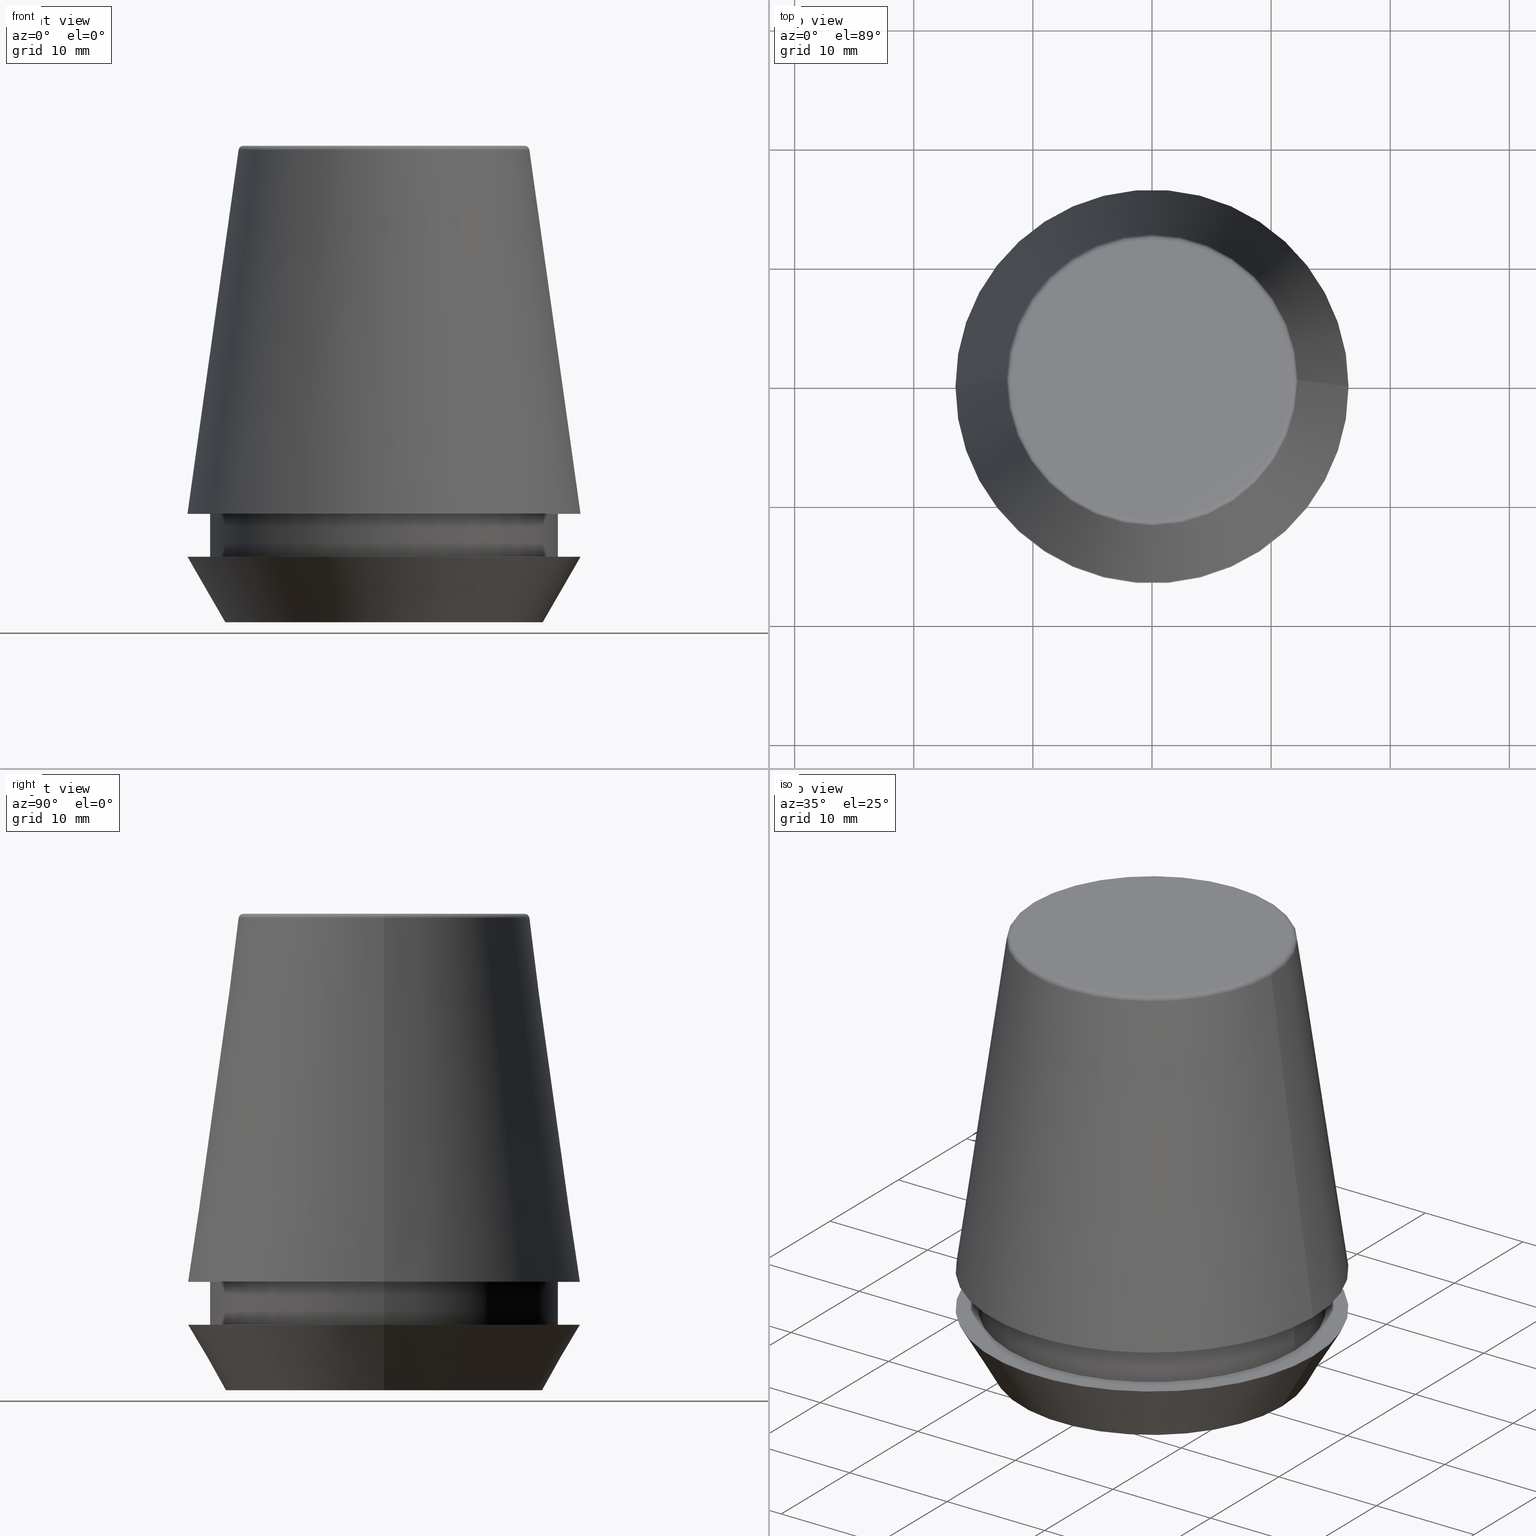
[diagram: canonical four-view strip — front | top / right | iso, engineering-drawing reading convention]
A machine part, canonical four-view strip (front | top / right | iso — engineering-drawing reading convention). The complete STEP part file that produces these views, byte-faithful:
ISO-10303-21;
HEADER;
FILE_DESCRIPTION (( 'STEP AP203' ),
    '1' );
FILE_NAME ('TAP COLLET ER 32G  4.0 X 3.15.STEP',
    '2019-04-09T10:36:05',
    ( '' ),
    ( '' ),
    'SwSTEP 2.0',
    'SolidWorks 2014',
    '' );
FILE_SCHEMA (( 'CONFIG_CONTROL_DESIGN' ));
ENDSEC;

DATA;
#1 = DIRECTION ( 'NONE',  ( 1.000000000000000000, 0.0000000000000000000, 0.0000000000000000000 ) ) ;
#2 = ORIENTED_EDGE ( 'NONE', *, *, #220, .F. ) ;
#3 = ORIENTED_EDGE ( 'NONE', *, *, #177, .T. ) ;
#4 = EDGE_CURVE ( 'NONE', #273, #23, #179, .T. ) ;
#5 = VERTEX_POINT ( 'NONE', #70 ) ;
#6 = ORIENTED_EDGE ( 'NONE', *, *, #310, .T. ) ;
#7 = CARTESIAN_POINT ( 'NONE',  ( 0.0000000000000000000, 0.0000000000000000000, 0.0000000000000000000 ) ) ;
#8 = PRODUCT_DEFINITION_FORMATION_WITH_SPECIFIED_SOURCE ( 'ANY', '', #78, .NOT_KNOWN. ) ;
#9 = PLANE ( 'NONE',  #207 ) ;
#10 = FACE_OUTER_BOUND ( 'NONE', #213, .T. ) ;
#11 = VECTOR ( 'NONE', #124, 1000.000000000000000 ) ;
#12 = DIRECTION ( 'NONE',  ( -0.0000000000000000000, -0.0000000000000000000, 1.000000000000000000 ) ) ;
#13 = CARTESIAN_POINT ( 'NONE',  ( 14.60000000000000000, 0.0000000000000000000, 9.099999999999997900 ) ) ;
#14 = CC_DESIGN_PERSON_AND_ORGANIZATION_ASSIGNMENT ( #296, #301, ( #240 ) ) ;
#15 = EDGE_LOOP ( 'NONE', ( #243, #142 ) ) ;
#16 = DIRECTION ( 'NONE',  ( -0.0000000000000000000, -0.0000000000000000000, 1.000000000000000000 ) ) ;
#17 = DIRECTION ( 'NONE',  ( -0.0000000000000000000, -0.0000000000000000000, 1.000000000000000000 ) ) ;
#18 = CC_DESIGN_APPROVAL ( #65, ( #240 ) ) ;
#19 = CARTESIAN_POINT ( 'NONE',  ( 14.60000000000000000, 0.0000000000000000000, 101.8074564848000400 ) ) ;
#20 = DIRECTION ( 'NONE',  ( -0.0000000000000000000, -0.0000000000000000000, 1.000000000000000000 ) ) ;
#21 = FACE_BOUND ( 'NONE', #15, .T. ) ;
#22 = DIRECTION ( 'NONE',  ( 1.000000000000000000, 0.0000000000000000000, 0.0000000000000000000 ) ) ;
#23 = VERTEX_POINT ( 'NONE', #118 ) ;
#24 = EDGE_CURVE ( 'NONE', #85, #5, #264, .T. ) ;
#25 = CARTESIAN_POINT ( 'NONE',  ( 0.0000000000000000000, 0.0000000000000000000, 5.500000000000005300 ) ) ;
#26 = ADVANCED_FACE ( 'NONE', ( #64 ), #275, .T. ) ;
#27 = PERSON_AND_ORGANIZATION_ROLE ( 'design_owner' ) ;
#28 = DATE_TIME_ROLE ( 'classification_date' ) ;
#29 = CONICAL_SURFACE ( 'NONE', #251, 16.50032537154048700, 0.1396263401595395900 ) ;
#30 = EDGE_LOOP ( 'NONE', ( #216, #231, #383, #331 ) ) ;
#31 = EDGE_LOOP ( 'NONE', ( #373, #138, #346, #285 ) ) ;
#32 = PERSON_AND_ORGANIZATION ( #100, #132 ) ;
#33 = VERTEX_POINT ( 'NONE', #245 ) ;
#34 = ORIENTED_EDGE ( 'NONE', *, *, #208, .F. ) ;
#35 = AXIS2_PLACEMENT_3D ( 'NONE', #81, #384, #167 ) ;
#36 = CARTESIAN_POINT ( 'NONE',  ( -14.60000000000000000, 1.787984326755135800E-015, 101.8074564848000400 ) ) ;
#37 = EDGE_CURVE ( 'NONE', #300, #198, #362, .T. ) ;
#38 = DIRECTION ( 'NONE',  ( 0.0000000000000000000, -0.0000000000000000000, 1.000000000000000000 ) ) ;
#39 = DIRECTION ( 'NONE',  ( -0.0000000000000000000, -0.0000000000000000000, 1.000000000000000000 ) ) ;
#40 = COORDINATED_UNIVERSAL_TIME_OFFSET ( 5, 30, .AHEAD. ) ;
#41 =( GEOMETRIC_REPRESENTATION_CONTEXT ( 3 ) GLOBAL_UNCERTAINTY_ASSIGNED_CONTEXT ( ( #248 ) ) GLOBAL_UNIT_ASSIGNED_CONTEXT ( ( #260, #83, #298 ) ) REPRESENTATION_CONTEXT ( 'NONE', 'WORKASPACE' ) );
#42 = LOCAL_TIME ( 16, 6, 5.000000000000000000, #113 ) ;
#43 = ORIENTED_EDGE ( 'NONE', *, *, #361, .T. ) ;
#44 = DIRECTION ( 'NONE',  ( -1.000000000000000000, 0.0000000000000000000, -0.0000000000000000000 ) ) ;
#45 = VERTEX_POINT ( 'NONE', #330 ) ;
#46 = LINE ( 'NONE', #36, #11 ) ;
#47 = DIRECTION ( 'NONE',  ( -0.0000000000000000000, -0.0000000000000000000, 1.000000000000000000 ) ) ;
#48 = FACE_OUTER_BOUND ( 'NONE', #327, .T. ) ;
#49 = CARTESIAN_POINT ( 'NONE',  ( -13.32457351945710200, 1.826228424826902600E-015, 0.0000000000000000000 ) ) ;
#50 = CALENDAR_DATE ( 2019, 9, 4 ) ;
#51 = DIRECTION ( 'NONE',  ( 1.000000000000000000, 0.0000000000000000000, 0.0000000000000000000 ) ) ;
#52 = DIRECTION ( 'NONE',  ( -0.0000000000000000000, -0.0000000000000000000, 1.000000000000000000 ) ) ;
#53 = LOCAL_TIME ( 16, 6, 5.000000000000000000, #123 ) ;
#54 = DIRECTION ( 'NONE',  ( -1.000000000000000000, 0.0000000000000000000, -0.0000000000000000000 ) ) ;
#55 = ADVANCED_FACE ( 'NONE', ( #48, #352 ), #9, .F. ) ;
#56 = DIRECTION ( 'NONE',  ( 1.000000000000000000, 0.0000000000000000000, 0.0000000000000000000 ) ) ;
#57 = CALENDAR_DATE ( 2019, 9, 4 ) ;
#58 = ORIENTED_EDGE ( 'NONE', *, *, #195, .F. ) ;
#59 = APPLICATION_PROTOCOL_DEFINITION ( 'international standard', 'config_control_design', 1994, #234 ) ;
#60 = CC_DESIGN_DATE_AND_TIME_ASSIGNMENT ( #357, #105, ( #240 ) ) ;
#61 = APPROVAL_ROLE ( '' ) ;
#62 = CIRCLE ( 'NONE', #287, 11.80989888411031400 ) ;
#63 = ADVANCED_FACE ( 'NONE', ( #119 ), #74, .T. ) ;
#64 = FACE_OUTER_BOUND ( 'NONE', #187, .T. ) ;
#65 = APPROVAL ( #262, 'UNSPECIFIED' ) ;
#66 = PERSON_AND_ORGANIZATION ( #100, #132 ) ;
#67 = ORIENTED_EDGE ( 'NONE', *, *, #269, .T. ) ;
#68 = DATE_AND_TIME ( #50, #120 ) ;
#69 = ORIENTED_EDGE ( 'NONE', *, *, #269, .F. ) ;
#70 = CARTESIAN_POINT ( 'NONE',  ( 14.60000000000000000, 0.0000000000000000000, 5.500000000000005300 ) ) ;
#71 = EDGE_LOOP ( 'NONE', ( #3, #174, #133, #82 ) ) ;
#72 = DIRECTION ( 'NONE',  ( 0.0000000000000000000, -1.000000000000000000, 0.0000000000000000000 ) ) ;
#73 = ORIENTED_EDGE ( 'NONE', *, *, #37, .T. ) ;
#74 = CONICAL_SURFACE ( 'NONE', #148, 13.32457351945710200, 0.5235987755982927100 ) ;
#75 = VERTEX_POINT ( 'NONE', #249 ) ;
#76 = DIRECTION ( 'NONE',  ( -1.000000000000000000, 0.0000000000000000000, 0.0000000000000000000 ) ) ;
#77 = DIRECTION ( 'NONE',  ( 1.000000000000000000, 0.0000000000000000000, 0.0000000000000000000 ) ) ;
#78 = PRODUCT ( 'TAP COLLET ER 32G  4.0 X 3.15', 'TAP COLLET ER 32G  4.0 X 3.15', '', ( #197 ) ) ;
#79 = DIRECTION ( 'NONE',  ( 0.0000000000000000000, -0.0000000000000000000, 1.000000000000000000 ) ) ;
#80 = EDGE_LOOP ( 'NONE', ( #304, #43 ) ) ;
#81 = CARTESIAN_POINT ( 'NONE',  ( 0.0000000000000000000, 0.0000000000000000000, 0.0000000000000000000 ) ) ;
#82 = ORIENTED_EDGE ( 'NONE', *, *, #283, .F. ) ;
#83 =( NAMED_UNIT ( * ) PLANE_ANGLE_UNIT ( ) SI_UNIT ( $, .RADIAN. ) );
#84 = APPROVAL_ROLE ( '' ) ;
#85 = VERTEX_POINT ( 'NONE', #153 ) ;
#86 = ADVANCED_FACE ( 'NONE', ( #230 ), #307, .T. ) ;
#87 = DIRECTION ( 'NONE',  ( -0.0000000000000000000, -0.0000000000000000000, 1.000000000000000000 ) ) ;
#88 = CIRCLE ( 'NONE', #223, 16.50032537154048700 ) ;
#89 = EDGE_LOOP ( 'NONE', ( #227, #186 ) ) ;
#90 = CARTESIAN_POINT ( 'NONE',  ( 11.80989888411031400, 0.0000000000000000000, 40.00000000000000700 ) ) ;
#91 = TOROIDAL_SURFACE ( 'NONE', #237, 11.80989888411031400, 0.4000000000000026900 ) ;
#92 = ORIENTED_EDGE ( 'NONE', *, *, #369, .F. ) ;
#93 = CARTESIAN_POINT ( 'NONE',  ( 0.0000000000000000000, 0.0000000000000000000, 101.8074564848000400 ) ) ;
#94 = CC_DESIGN_PERSON_AND_ORGANIZATION_ASSIGNMENT ( #66, #27, ( #78 ) ) ;
#95 = CARTESIAN_POINT ( 'NONE',  ( -14.60000000000000000, 1.787984326755135800E-015, 9.099999999999997900 ) ) ;
#96 = VECTOR ( 'NONE', #354, 999.9999999999998900 ) ;
#97 = DIRECTION ( 'NONE',  ( -1.000000000000000000, 0.0000000000000000000, 0.0000000000000000000 ) ) ;
#98 = DIRECTION ( 'NONE',  ( 0.4999999999999947300, 0.0000000000000000000, 0.8660254037844418200 ) ) ;
#99 = LINE ( 'NONE', #19, #329 ) ;
#100 = PERSON ( 'UNSPECIFIED', 'UNSPECIFIED', 'UNSPECIFIED', ('UNSPECIFIED'), ('UNSPECIFIED'), ('UNSPECIFIED') ) ;
#101 = CARTESIAN_POINT ( 'NONE',  ( 0.0000000000000000000, 16.50000000000000000, 5.500000000000002700 ) ) ;
#102 = ORIENTED_EDGE ( 'NONE', *, *, #195, .T. ) ;
#103 = APPROVAL_DATE_TIME ( #183, #342 ) ;
#104 = PERSON_AND_ORGANIZATION ( #100, #132 ) ;
#105 = DATE_TIME_ROLE ( 'creation_date' ) ;
#106 = ORIENTED_EDGE ( 'NONE', *, *, #170, .F. ) ;
#107 = EDGE_CURVE ( 'NONE', #273, #75, #145, .T. ) ;
#108 = VERTEX_POINT ( 'NONE', #279 ) ;
#109 = VECTOR ( 'NONE', #125, 1000.000000000000000 ) ;
#110 = DIRECTION ( 'NONE',  ( 1.000000000000000000, 0.0000000000000000000, 0.0000000000000000000 ) ) ;
#111 = DIRECTION ( 'NONE',  ( 1.000000000000000000, 0.0000000000000000000, 0.0000000000000000000 ) ) ;
#112 = APPROVAL_PERSON_ORGANIZATION ( #193, #342, #61 ) ;
#113 = COORDINATED_UNIVERSAL_TIME_OFFSET ( 5, 30, .AHEAD. ) ;
#114 = VERTEX_POINT ( 'NONE', #218 ) ;
#115 = VERTEX_POINT ( 'NONE', #13 ) ;
#116 = CIRCLE ( 'NONE', #295, 16.50000000000000000 ) ;
#117 = VECTOR ( 'NONE', #98, 999.9999999999998900 ) ;
#118 = CARTESIAN_POINT ( 'NONE',  ( -16.50000000000000000, 2.020667218593133100E-015, 5.500000000000005300 ) ) ;
#119 = FACE_OUTER_BOUND ( 'NONE', #271, .T. ) ;
#120 = LOCAL_TIME ( 16, 6, 5.000000000000000000, #205 ) ;
#121 = DIRECTION ( 'NONE',  ( -0.0000000000000000000, -0.0000000000000000000, 1.000000000000000000 ) ) ;
#122 = DIRECTION ( 'NONE',  ( 0.0000000000000000000, 0.0000000000000000000, -1.000000000000000000 ) ) ;
#123 = COORDINATED_UNIVERSAL_TIME_OFFSET ( 5, 30, .AHEAD. ) ;
#124 = DIRECTION ( 'NONE',  ( -0.0000000000000000000, -0.0000000000000000000, 1.000000000000000000 ) ) ;
#125 = DIRECTION ( 'NONE',  ( -0.1391731009600586900, 0.0000000000000000000, -0.9902680687415712500 ) ) ;
#126 = LOCAL_TIME ( 16, 6, 5.000000000000000000, #209 ) ;
#127 = ORIENTED_EDGE ( 'NONE', *, *, #37, .F. ) ;
#128 = DIRECTION ( 'NONE',  ( -0.0000000000000000000, -0.0000000000000000000, 1.000000000000000000 ) ) ;
#129 = FACE_OUTER_BOUND ( 'NONE', #272, .T. ) ;
#130 = CARTESIAN_POINT ( 'NONE',  ( 0.0000000000000000000, 0.0000000000000000000, 40.00000000000000700 ) ) ;
#131 = DIRECTION ( 'NONE',  ( 0.0000000000000000000, 0.0000000000000000000, -1.000000000000000000 ) ) ;
#132 = ORGANIZATION ( 'UNSPECIFIED', 'UNSPECIFIED', '' ) ;
#133 = ORIENTED_EDGE ( 'NONE', *, *, #149, .F. ) ;
#134 = PLANE ( 'NONE',  #309 ) ;
#135 = CARTESIAN_POINT ( 'NONE',  ( 0.0000000000000000000, 0.0000000000000000000, 9.099999999999997900 ) ) ;
#136 = CIRCLE ( 'NONE', #299, 14.60000000000000000 ) ;
#137 = AXIS2_PLACEMENT_3D ( 'NONE', #280, #12, #372 ) ;
#138 = ORIENTED_EDGE ( 'NONE', *, *, #289, .T. ) ;
#139 = ADVANCED_FACE ( 'NONE', ( #217 ), #286, .T. ) ;
#140 = APPROVAL_ROLE ( '' ) ;
#141 = CARTESIAN_POINT ( 'NONE',  ( 0.0000000000000000000, 0.0000000000000000000, 5.500000000000005300 ) ) ;
#142 = ORIENTED_EDGE ( 'NONE', *, *, #24, .F. ) ;
#143 = AXIS2_PLACEMENT_3D ( 'NONE', #333, #316, #76 ) ;
#144 = EDGE_LOOP ( 'NONE', ( #154, #2, #348, #323 ) ) ;
#145 = CIRCLE ( 'NONE', #137, 13.32457351945710200 ) ;
#146 = EDGE_LOOP ( 'NONE', ( #314, #377, #188, #127 ) ) ;
#147 = MANIFOLD_SOLID_BREP ( 'Revolve1', #226 ) ;
#148 = AXIS2_PLACEMENT_3D ( 'NONE', #367, #121, #247 ) ;
#149 = EDGE_CURVE ( 'NONE', #115, #214, #382, .T. ) ;
#150 = DIRECTION ( 'NONE',  ( -0.0000000000000000000, -0.0000000000000000000, 1.000000000000000000 ) ) ;
#151 = DIRECTION ( 'NONE',  ( 1.000000000000000000, 0.0000000000000000000, 0.0000000000000000000 ) ) ;
#152 = CIRCLE ( 'NONE', #356, 16.50000000000000000 ) ;
#153 = CARTESIAN_POINT ( 'NONE',  ( -14.60000000000000000, 1.787984326755135800E-015, 5.500000000000005300 ) ) ;
#154 = ORIENTED_EDGE ( 'NONE', *, *, #289, .F. ) ;
#155 = AXIS2_PLACEMENT_3D ( 'NONE', #366, #72, #122 ) ;
#156 = DIRECTION ( 'NONE',  ( 1.000000000000000000, 0.0000000000000000000, 0.0000000000000000000 ) ) ;
#157 = ORIENTED_EDGE ( 'NONE', *, *, #369, .T. ) ;
#158 = AXIS2_PLACEMENT_3D ( 'NONE', #7, #238, #1 ) ;
#159 = DIRECTION ( 'NONE',  ( 1.000000000000000000, 0.0000000000000000000, 0.0000000000000000000 ) ) ;
#160 = CARTESIAN_POINT ( 'NONE',  ( 0.0000000000000000000, 0.0000000000000000000, 39.65566924038402900 ) ) ;
#161 = CARTESIAN_POINT ( 'NONE',  ( 16.50032537154048700, 2.020707065114692300E-015, 9.099999999999997900 ) ) ;
#162 = FACE_OUTER_BOUND ( 'NONE', #89, .T. ) ;
#163 = DIRECTION ( 'NONE',  ( -0.0000000000000000000, -0.0000000000000000000, 1.000000000000000000 ) ) ;
#164 = AXIS2_PLACEMENT_3D ( 'NONE', #212, #150, #111 ) ;
#165 = DIRECTION ( 'NONE',  ( 1.000000000000000000, 0.0000000000000000000, 0.0000000000000000000 ) ) ;
#166 = ADVANCED_FACE ( 'NONE', ( #201 ), #189, .T. ) ;
#167 = DIRECTION ( 'NONE',  ( 1.000000000000000000, 0.0000000000000000000, 0.0000000000000000000 ) ) ;
#168 = ORIENTED_EDGE ( 'NONE', *, *, #208, .T. ) ;
#169 = PERSON_AND_ORGANIZATION_ROLE ( 'design_supplier' ) ;
#170 = EDGE_CURVE ( 'NONE', #45, #259, #274, .T. ) ;
#171 = DESIGN_CONTEXT ( 'detailed design', #234, 'design' ) ;
#172 = VECTOR ( 'NONE', #225, 1000.000000000000000 ) ;
#173 = ADVANCED_BREP_SHAPE_REPRESENTATION ( 'TAP COLLET ER 32G  4.0 X 3.15', ( #147, #35 ), #41 ) ;
#174 = ORIENTED_EDGE ( 'NONE', *, *, #184, .T. ) ;
#175 = EDGE_CURVE ( 'NONE', #45, #33, #350, .T. ) ;
#176 = EDGE_CURVE ( 'NONE', #198, #259, #291, .T. ) ;
#177 = EDGE_CURVE ( 'NONE', #5, #85, #136, .T. ) ;
#178 = CARTESIAN_POINT ( 'NONE',  ( -13.32457351945710200, 1.631789631060672300E-015, 0.0000000000000000000 ) ) ;
#179 = LINE ( 'NONE', #178, #96 ) ;
#180 = PLANE ( 'NONE',  #276 ) ;
#181 = FACE_OUTER_BOUND ( 'NONE', #146, .T. ) ;
#182 = DIRECTION ( 'NONE',  ( 1.000000000000000000, 0.0000000000000000000, 0.0000000000000000000 ) ) ;
#183 = DATE_AND_TIME ( #267, #341 ) ;
#184 = EDGE_CURVE ( 'NONE', #85, #214, #46, .T. ) ;
#185 = APPROVAL_DATE_TIME ( #270, #386 ) ;
#186 = ORIENTED_EDGE ( 'NONE', *, *, #107, .F. ) ;
#187 = EDGE_LOOP ( 'NONE', ( #6, #305, #58, #69 ) ) ;
#188 = ORIENTED_EDGE ( 'NONE', *, *, #176, .F. ) ;
#189 = CYLINDRICAL_SURFACE ( 'NONE', #306, 14.60000000000000000 ) ;
#190 = DIRECTION ( 'NONE',  ( 1.000000000000000000, 0.0000000000000000000, 0.0000000000000000000 ) ) ;
#191 = CARTESIAN_POINT ( 'NONE',  ( 0.0000000000000000000, 0.0000000000000000000, 39.60000000000000100 ) ) ;
#192 = CARTESIAN_POINT ( 'NONE',  ( 0.0000000000000000000, 0.0000000000000000000, 0.0000000000000000000 ) ) ;
#193 = PERSON_AND_ORGANIZATION ( #100, #132 ) ;
#194 = DIRECTION ( 'NONE',  ( -0.0000000000000000000, -0.0000000000000000000, 1.000000000000000000 ) ) ;
#195 = EDGE_CURVE ( 'NONE', #114, #23, #116, .T. ) ;
#196 = APPROVAL_PERSON_ORGANIZATION ( #281, #386, #140 ) ;
#197 = MECHANICAL_CONTEXT ( 'NONE', #322, 'mechanical' ) ;
#198 = VERTEX_POINT ( 'NONE', #90 ) ;
#199 = PERSON_AND_ORGANIZATION_ROLE ( 'classification_officer' ) ;
#200 = ORIENTED_EDGE ( 'NONE', *, *, #107, .T. ) ;
#201 = FACE_OUTER_BOUND ( 'NONE', #30, .T. ) ;
#202 = TOROIDAL_SURFACE ( 'NONE', #254, 11.80989888411031400, 0.4000000000000026900 ) ;
#203 = ADVANCED_FACE ( 'NONE', ( #315 ), #180, .F. ) ;
#204 = FACE_OUTER_BOUND ( 'NONE', #31, .T. ) ;
#205 = COORDINATED_UNIVERSAL_TIME_OFFSET ( 5, 30, .AHEAD. ) ;
#206 = CARTESIAN_POINT ( 'NONE',  ( 0.0000000000000000000, 11.80989888411031400, 40.00000000000000700 ) ) ;
#207 = AXIS2_PLACEMENT_3D ( 'NONE', #313, #38, #182 ) ;
#208 = EDGE_CURVE ( 'NONE', #259, #198, #62, .T. ) ;
#209 = COORDINATED_UNIVERSAL_TIME_OFFSET ( 5, 30, .AHEAD. ) ;
#210 = ORIENTED_EDGE ( 'NONE', *, *, #220, .T. ) ;
#211 = SHAPE_DEFINITION_REPRESENTATION ( #302, #173 ) ;
#212 = CARTESIAN_POINT ( 'NONE',  ( 0.0000000000000000000, 0.0000000000000000000, 5.500000000000005300 ) ) ;
#213 = EDGE_LOOP ( 'NONE', ( #102, #157 ) ) ;
#214 = VERTEX_POINT ( 'NONE', #95 ) ;
#215 = DIRECTION ( 'NONE',  ( -0.0000000000000000000, -0.0000000000000000000, 1.000000000000000000 ) ) ;
#216 = ORIENTED_EDGE ( 'NONE', *, *, #184, .F. ) ;
#217 = FACE_OUTER_BOUND ( 'NONE', #144, .T. ) ;
#218 = CARTESIAN_POINT ( 'NONE',  ( 16.50000000000000000, 0.0000000000000000000, 5.500000000000005300 ) ) ;
#219 = AXIS2_PLACEMENT_3D ( 'NONE', #192, #79, #294 ) ;
#220 = EDGE_CURVE ( 'NONE', #45, #300, #359, .T. ) ;
#221 = CARTESIAN_POINT ( 'NONE',  ( -16.50032537154048700, 0.0000000000000000000, 9.099999999999997900 ) ) ;
#222 = DIRECTION ( 'NONE',  ( 0.0000000000000000000, 0.0000000000000000000, -1.000000000000000000 ) ) ;
#223 = AXIS2_PLACEMENT_3D ( 'NONE', #380, #194, #22 ) ;
#224 = CARTESIAN_POINT ( 'NONE',  ( 0.0000000000000000000, 0.0000000000000000000, 39.65566924038402900 ) ) ;
#225 = DIRECTION ( 'NONE',  ( 0.1391731009600586900, 1.704378926181473100E-017, -0.9902680687415712500 ) ) ;
#226 = CLOSED_SHELL ( 'NONE', ( #297, #261, #86, #26, #203, #325, #63, #349, #166, #55, #139, #236 ) ) ;
#227 = ORIENTED_EDGE ( 'NONE', *, *, #310, .F. ) ;
#228 = CARTESIAN_POINT ( 'NONE',  ( 0.0000000000000000000, 0.0000000000000000000, 0.0000000000000000000 ) ) ;
#229 = DIRECTION ( 'NONE',  ( 0.0000000000000000000, 0.0000000000000000000, -1.000000000000000000 ) ) ;
#230 = FACE_OUTER_BOUND ( 'NONE', #71, .T. ) ;
#231 = ORIENTED_EDGE ( 'NONE', *, *, #24, .T. ) ;
#232 = DIRECTION ( 'NONE',  ( -0.0000000000000000000, -0.0000000000000000000, 1.000000000000000000 ) ) ;
#233 = AXIS2_PLACEMENT_3D ( 'NONE', #228, #52, #258 ) ;
#234 = APPLICATION_CONTEXT ( 'configuration controlled 3d designs of mechanical parts and assemblies' ) ;
#235 = APPROVAL_STATUS ( 'not_yet_approved' ) ;
#236 = ADVANCED_FACE ( 'NONE', ( #129 ), #202, .T. ) ;
#237 = AXIS2_PLACEMENT_3D ( 'NONE', #191, #20, #51 ) ;
#238 = DIRECTION ( 'NONE',  ( -0.0000000000000000000, -0.0000000000000000000, 1.000000000000000000 ) ) ;
#239 = CIRCLE ( 'NONE', #365, 14.60000000000000000 ) ;
#240 = PRODUCT_DEFINITION ( 'UNKNOWN', '', #8, #171 ) ;
#241 = ORIENTED_EDGE ( 'NONE', *, *, #176, .T. ) ;
#242 = AXIS2_PLACEMENT_3D ( 'NONE', #340, #163, #378 ) ;
#243 = ORIENTED_EDGE ( 'NONE', *, *, #177, .F. ) ;
#244 = DIRECTION ( 'NONE',  ( 1.000000000000000000, 0.0000000000000000000, 0.0000000000000000000 ) ) ;
#245 = CARTESIAN_POINT ( 'NONE',  ( -16.50032537154048700, 0.0000000000000000000, 9.099999999999997900 ) ) ;
#246 = CIRCLE ( 'NONE', #242, 16.50032537154048700 ) ;
#247 = DIRECTION ( 'NONE',  ( 1.000000000000000000, 0.0000000000000000000, 0.0000000000000000000 ) ) ;
#248 = UNCERTAINTY_MEASURE_WITH_UNIT (LENGTH_MEASURE( 1.000000000000000100E-005 ), #260, 'distance_accuracy_value', 'NONE');
#249 = CARTESIAN_POINT ( 'NONE',  ( 13.32457351945710200, 0.0000000000000000000, 0.0000000000000000000 ) ) ;
#250 = DIRECTION ( 'NONE',  ( -1.000000000000000000, 1.224646799147352500E-016, 0.0000000000000000000 ) ) ;
#251 = AXIS2_PLACEMENT_3D ( 'NONE', #320, #131, #97 ) ;
#252 = CARTESIAN_POINT ( 'NONE',  ( 0.0000000000000000000, 0.0000000000000000000, 101.8074564848000400 ) ) ;
#253 = DIRECTION ( 'NONE',  ( 1.000000000000000000, 0.0000000000000000000, 0.0000000000000000000 ) ) ;
#254 = AXIS2_PLACEMENT_3D ( 'NONE', #375, #17, #77 ) ;
#255 = EDGE_CURVE ( 'NONE', #300, #45, #288, .T. ) ;
#256 = CIRCLE ( 'NONE', #233, 13.32457351945710200 ) ;
#257 = PLANE ( 'NONE',  #219 ) ;
#258 = DIRECTION ( 'NONE',  ( 1.000000000000000000, 0.0000000000000000000, 0.0000000000000000000 ) ) ;
#259 = VERTEX_POINT ( 'NONE', #290 ) ;
#260 =( LENGTH_UNIT ( ) NAMED_UNIT ( * ) SI_UNIT ( .MILLI., .METRE. ) );
#261 = ADVANCED_FACE ( 'NONE', ( #204 ), #29, .T. ) ;
#262 = APPROVAL_STATUS ( 'not_yet_approved' ) ;
#263 = AXIS2_PLACEMENT_3D ( 'NONE', #160, #376, #190 ) ;
#264 = CIRCLE ( 'NONE', #164, 14.60000000000000000 ) ;
#265 = LINE ( 'NONE', #161, #172 ) ;
#266 = AXIS2_PLACEMENT_3D ( 'NONE', #319, #16, #156 ) ;
#267 = CALENDAR_DATE ( 2019, 9, 4 ) ;
#268 = AXIS2_PLACEMENT_3D ( 'NONE', #224, #47, #253 ) ;
#269 = EDGE_CURVE ( 'NONE', #75, #114, #351, .T. ) ;
#270 = DATE_AND_TIME ( #345, #42 ) ;
#271 = EDGE_LOOP ( 'NONE', ( #317, #200, #67, #92 ) ) ;
#272 = EDGE_LOOP ( 'NONE', ( #106, #210, #73, #34 ) ) ;
#273 = VERTEX_POINT ( 'NONE', #49 ) ;
#274 = CIRCLE ( 'NONE', #312, 0.4000000000000028000 ) ;
#275 = CONICAL_SURFACE ( 'NONE', #158, 13.32457351945710200, 0.5235987755982927100 ) ;
#276 = AXIS2_PLACEMENT_3D ( 'NONE', #206, #222, #44 ) ;
#277 = CARTESIAN_POINT ( 'NONE',  ( 0.0000000000000000000, 0.0000000000000000000, 40.00000000000000700 ) ) ;
#278 = DATE_AND_TIME ( #355, #53 ) ;
#279 = CARTESIAN_POINT ( 'NONE',  ( 16.50032537154048700, 2.020707065114692300E-015, 9.099999999999997900 ) ) ;
#280 = CARTESIAN_POINT ( 'NONE',  ( 0.0000000000000000000, 0.0000000000000000000, 0.0000000000000000000 ) ) ;
#281 = PERSON_AND_ORGANIZATION ( #100, #132 ) ;
#282 = AXIS2_PLACEMENT_3D ( 'NONE', #93, #39, #370 ) ;
#283 = EDGE_CURVE ( 'NONE', #5, #115, #99, .T. ) ;
#284 = DIRECTION ( 'NONE',  ( 1.000000000000000000, 0.0000000000000000000, 0.0000000000000000000 ) ) ;
#285 = ORIENTED_EDGE ( 'NONE', *, *, #175, .F. ) ;
#286 = CONICAL_SURFACE ( 'NONE', #143, 16.50032537154048700, 0.1396263401595395900 ) ;
#287 = AXIS2_PLACEMENT_3D ( 'NONE', #130, #336, #159 ) ;
#288 = CIRCLE ( 'NONE', #263, 12.20600611160694300 ) ;
#289 = EDGE_CURVE ( 'NONE', #300, #108, #265, .T. ) ;
#290 = CARTESIAN_POINT ( 'NONE',  ( -11.80989888411031400, 1.470550059081603400E-015, 40.00000000000000700 ) ) ;
#291 = CIRCLE ( 'NONE', #308, 11.80989888411031400 ) ;
#292 = APPROVAL_PERSON_ORGANIZATION ( #363, #65, #84 ) ;
#293 = CARTESIAN_POINT ( 'NONE',  ( 13.32457351945710200, 0.0000000000000000000, 0.0000000000000000000 ) ) ;
#294 = DIRECTION ( 'NONE',  ( 1.000000000000000000, 0.0000000000000000000, 0.0000000000000000000 ) ) ;
#295 = AXIS2_PLACEMENT_3D ( 'NONE', #141, #87, #110 ) ;
#296 = PERSON_AND_ORGANIZATION ( #100, #132 ) ;
#297 = ADVANCED_FACE ( 'NONE', ( #181 ), #91, .T. ) ;
#298 =( NAMED_UNIT ( * ) SI_UNIT ( $, .STERADIAN. ) SOLID_ANGLE_UNIT ( ) );
#299 = AXIS2_PLACEMENT_3D ( 'NONE', #364, #311, #244 ) ;
#300 = VERTEX_POINT ( 'NONE', #321 ) ;
#301 = PERSON_AND_ORGANIZATION_ROLE ( 'creator' ) ;
#302 = PRODUCT_DEFINITION_SHAPE ( 'NONE', 'NONE',  #240 ) ;
#303 = EDGE_CURVE ( 'NONE', #33, #108, #246, .T. ) ;
#304 = ORIENTED_EDGE ( 'NONE', *, *, #149, .T. ) ;
#305 = ORIENTED_EDGE ( 'NONE', *, *, #4, .T. ) ;
#306 = AXIS2_PLACEMENT_3D ( 'NONE', #252, #128, #284 ) ;
#307 = CYLINDRICAL_SURFACE ( 'NONE', #282, 14.60000000000000000 ) ;
#308 = AXIS2_PLACEMENT_3D ( 'NONE', #277, #215, #151 ) ;
#309 = AXIS2_PLACEMENT_3D ( 'NONE', #101, #229, #54 ) ;
#310 = EDGE_CURVE ( 'NONE', #75, #273, #256, .T. ) ;
#311 = DIRECTION ( 'NONE',  ( -0.0000000000000000000, -0.0000000000000000000, 1.000000000000000000 ) ) ;
#312 = AXIS2_PLACEMENT_3D ( 'NONE', #334, #318, #250 ) ;
#313 = CARTESIAN_POINT ( 'NONE',  ( 0.0000000000000000000, 16.50032537154048700, 9.099999999999999600 ) ) ;
#314 = ORIENTED_EDGE ( 'NONE', *, *, #255, .T. ) ;
#315 = FACE_OUTER_BOUND ( 'NONE', #379, .T. ) ;
#316 = DIRECTION ( 'NONE',  ( 0.0000000000000000000, 0.0000000000000000000, -1.000000000000000000 ) ) ;
#317 = ORIENTED_EDGE ( 'NONE', *, *, #4, .F. ) ;
#318 = DIRECTION ( 'NONE',  ( 1.224646799147353200E-016, 1.000000000000000000, 0.0000000000000000000 ) ) ;
#319 = CARTESIAN_POINT ( 'NONE',  ( 0.0000000000000000000, 0.0000000000000000000, 9.099999999999997900 ) ) ;
#320 = CARTESIAN_POINT ( 'NONE',  ( 0.0000000000000000000, 0.0000000000000000000, 9.099999999999997900 ) ) ;
#321 = CARTESIAN_POINT ( 'NONE',  ( 12.20600611160694300, 1.757755848304969800E-015, 39.65566924038402900 ) ) ;
#322 = APPLICATION_CONTEXT ( 'configuration controlled 3d designs of mechanical parts and assemblies' ) ;
#323 = ORIENTED_EDGE ( 'NONE', *, *, #303, .T. ) ;
#324 = APPROVAL_STATUS ( 'not_yet_approved' ) ;
#325 = ADVANCED_FACE ( 'NONE', ( #162 ), #257, .F. ) ;
#326 = EDGE_CURVE ( 'NONE', #108, #33, #88, .T. ) ;
#327 = EDGE_LOOP ( 'NONE', ( #337, #358 ) ) ;
#328 = PRODUCT_RELATED_PRODUCT_CATEGORY ( 'detail', '', ( #78 ) ) ;
#329 = VECTOR ( 'NONE', #338, 1000.000000000000000 ) ;
#330 = CARTESIAN_POINT ( 'NONE',  ( -12.20600611160694300, 0.0000000000000000000, 39.65566924038402900 ) ) ;
#331 = ORIENTED_EDGE ( 'NONE', *, *, #361, .F. ) ;
#332 = CC_DESIGN_SECURITY_CLASSIFICATION ( #360, ( #8 ) ) ;
#333 = CARTESIAN_POINT ( 'NONE',  ( 0.0000000000000000000, 0.0000000000000000000, 9.099999999999997900 ) ) ;
#334 = CARTESIAN_POINT ( 'NONE',  ( -11.80989888411031400, 1.446295486667959300E-015, 39.60000000000000100 ) ) ;
#335 = PERSON_AND_ORGANIZATION ( #100, #132 ) ;
#336 = DIRECTION ( 'NONE',  ( -0.0000000000000000000, -0.0000000000000000000, 1.000000000000000000 ) ) ;
#337 = ORIENTED_EDGE ( 'NONE', *, *, #303, .F. ) ;
#338 = DIRECTION ( 'NONE',  ( -0.0000000000000000000, -0.0000000000000000000, 1.000000000000000000 ) ) ;
#339 = CC_DESIGN_APPROVAL ( #342, ( #360 ) ) ;
#340 = CARTESIAN_POINT ( 'NONE',  ( 0.0000000000000000000, 0.0000000000000000000, 9.099999999999997900 ) ) ;
#341 = LOCAL_TIME ( 16, 6, 5.000000000000000000, #40 ) ;
#342 = APPROVAL ( #235, 'UNSPECIFIED' ) ;
#343 = DIRECTION ( 'NONE',  ( -0.0000000000000000000, -0.0000000000000000000, 1.000000000000000000 ) ) ;
#344 = CC_DESIGN_DATE_AND_TIME_ASSIGNMENT ( #278, #28, ( #360 ) ) ;
#345 = CALENDAR_DATE ( 2019, 9, 4 ) ;
#346 = ORIENTED_EDGE ( 'NONE', *, *, #326, .T. ) ;
#347 = PERSON_AND_ORGANIZATION_ROLE ( 'creator' ) ;
#348 = ORIENTED_EDGE ( 'NONE', *, *, #175, .T. ) ;
#349 = ADVANCED_FACE ( 'NONE', ( #21, #10 ), #134, .F. ) ;
#350 = LINE ( 'NONE', #221, #109 ) ;
#351 = LINE ( 'NONE', #293, #117 ) ;
#352 = FACE_BOUND ( 'NONE', #80, .T. ) ;
#353 = CC_DESIGN_PERSON_AND_ORGANIZATION_ASSIGNMENT ( #335, #199, ( #360 ) ) ;
#354 = DIRECTION ( 'NONE',  ( -0.4999999999999947300, 6.123233995736700700E-017, 0.8660254037844418200 ) ) ;
#355 = CALENDAR_DATE ( 2019, 9, 4 ) ;
#356 = AXIS2_PLACEMENT_3D ( 'NONE', #25, #232, #56 ) ;
#357 = DATE_AND_TIME ( #57, #126 ) ;
#358 = ORIENTED_EDGE ( 'NONE', *, *, #326, .F. ) ;
#359 = CIRCLE ( 'NONE', #268, 12.20600611160694300 ) ;
#360 = SECURITY_CLASSIFICATION ( '', '', #387 ) ;
#361 = EDGE_CURVE ( 'NONE', #214, #115, #239, .T. ) ;
#362 = CIRCLE ( 'NONE', #155, 0.4000000000000045200 ) ;
#363 = PERSON_AND_ORGANIZATION ( #100, #132 ) ;
#364 = CARTESIAN_POINT ( 'NONE',  ( 0.0000000000000000000, 0.0000000000000000000, 5.500000000000005300 ) ) ;
#365 = AXIS2_PLACEMENT_3D ( 'NONE', #135, #343, #165 ) ;
#366 = CARTESIAN_POINT ( 'NONE',  ( 11.80989888411031400, 0.0000000000000000000, 39.60000000000000100 ) ) ;
#367 = CARTESIAN_POINT ( 'NONE',  ( 0.0000000000000000000, 0.0000000000000000000, 0.0000000000000000000 ) ) ;
#368 = CC_DESIGN_PERSON_AND_ORGANIZATION_ASSIGNMENT ( #32, #169, ( #8 ) ) ;
#369 = EDGE_CURVE ( 'NONE', #23, #114, #152, .T. ) ;
#370 = DIRECTION ( 'NONE',  ( 1.000000000000000000, 0.0000000000000000000, 0.0000000000000000000 ) ) ;
#371 = APPROVAL_DATE_TIME ( #68, #65 ) ;
#372 = DIRECTION ( 'NONE',  ( 1.000000000000000000, 0.0000000000000000000, 0.0000000000000000000 ) ) ;
#373 = ORIENTED_EDGE ( 'NONE', *, *, #255, .F. ) ;
#374 = CC_DESIGN_PERSON_AND_ORGANIZATION_ASSIGNMENT ( #104, #347, ( #8 ) ) ;
#375 = CARTESIAN_POINT ( 'NONE',  ( 0.0000000000000000000, 0.0000000000000000000, 39.60000000000000100 ) ) ;
#376 = DIRECTION ( 'NONE',  ( -0.0000000000000000000, -0.0000000000000000000, 1.000000000000000000 ) ) ;
#377 = ORIENTED_EDGE ( 'NONE', *, *, #170, .T. ) ;
#378 = DIRECTION ( 'NONE',  ( 1.000000000000000000, 0.0000000000000000000, 0.0000000000000000000 ) ) ;
#379 = EDGE_LOOP ( 'NONE', ( #241, #168 ) ) ;
#380 = CARTESIAN_POINT ( 'NONE',  ( 0.0000000000000000000, 0.0000000000000000000, 9.099999999999997900 ) ) ;
#381 = CC_DESIGN_APPROVAL ( #386, ( #8 ) ) ;
#382 = CIRCLE ( 'NONE', #266, 14.60000000000000000 ) ;
#383 = ORIENTED_EDGE ( 'NONE', *, *, #283, .T. ) ;
#384 = DIRECTION ( 'NONE',  ( 0.0000000000000000000, 0.0000000000000000000, 1.000000000000000000 ) ) ;
#385 = APPLICATION_PROTOCOL_DEFINITION ( 'international standard', 'config_control_design', 1994, #322 ) ;
#386 = APPROVAL ( #324, 'UNSPECIFIED' ) ;
#387 = SECURITY_CLASSIFICATION_LEVEL ( 'unclassified' ) ;
ENDSEC;
END-ISO-10303-21;
